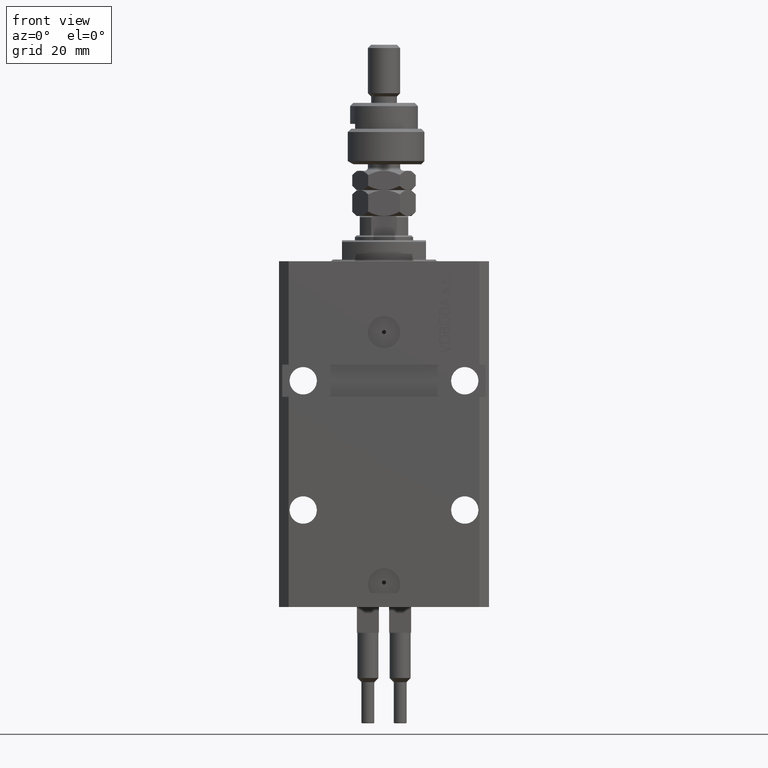
[diagram: clean part render]
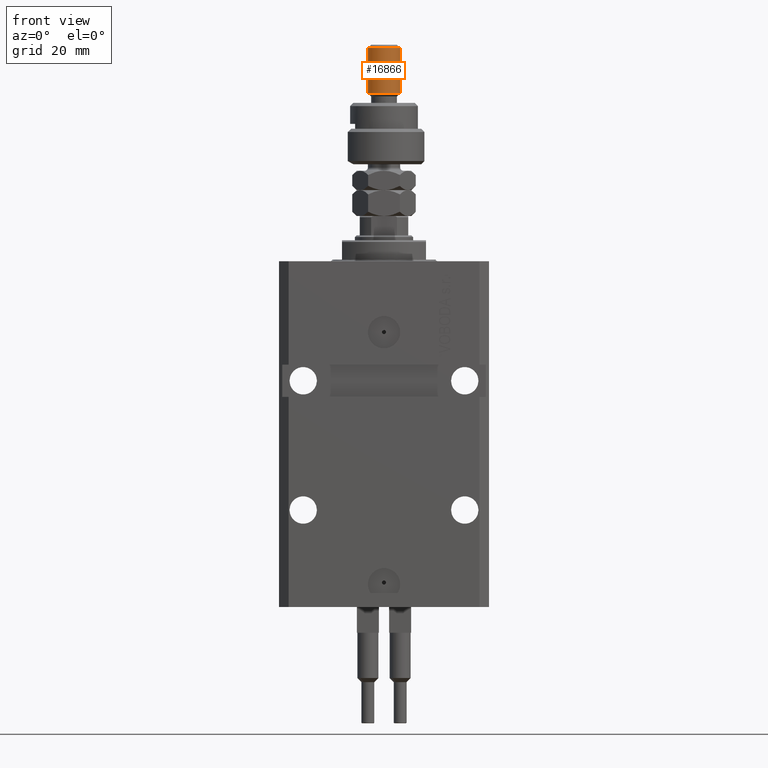
[diagram: same view with one face highlighted and labeled with its STEP entity id]
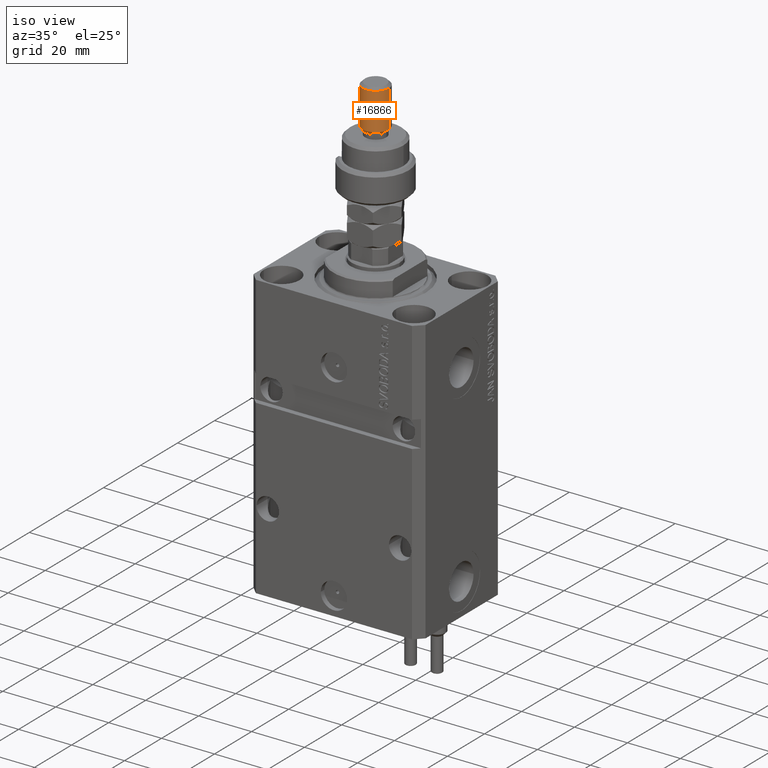
[diagram: same view with one face highlighted and labeled with its STEP entity id]
A machine part, front view. The second image highlights one B-rep face of the part: STEP entity #16866.
A second angle (iso view) of the same face is appended — the face is thin or edge-on in the first view.
In plain terms, the highlighted cylindrical surface (edge-blend (fillet) strip) has radius 5 mm, axis along (-0, -0, -1).
Its self-contained STEP definition (entity closure, byte-faithful):
#4329 = DIRECTION ( 'NONE',  ( 0.000000000000000000, 0.000000000000000000, -1.000000000000000000 ) ) ;
#6002 = EDGE_CURVE ( 'NONE', #43682, #35804, #16160, .T. ) ;
#6141 = DIRECTION ( 'NONE',  ( -0.000000000000000000, -0.000000000000000000, -1.000000000000000000 ) ) ;
#7435 = DIRECTION ( 'NONE',  ( 1.000000000000000000, 0.000000000000000000, 0.000000000000000000 ) ) ;
#7495 = CARTESIAN_POINT ( 'NONE',  ( 5.000000000000000888, 6.123233995736767268E-16, 36.00000000000000711 ) ) ;
#7904 = CARTESIAN_POINT ( 'NONE',  ( 0.000000000000000000, 0.000000000000000000, 21.99999999999999289 ) ) ;
#12590 = DIRECTION ( 'NONE',  ( -0.000000000000000000, -0.000000000000000000, 1.000000000000000000 ) ) ;
#14646 = DIRECTION ( 'NONE',  ( -1.000000000000000000, 0.000000000000000000, 0.000000000000000000 ) ) ;
#16160 = LINE ( 'NONE', #42937, #31492 ) ;
#16261 = CIRCLE ( 'NONE', #22031, 5.000000000000000888 ) ;
#16866 = ADVANCED_FACE ( 'NONE', ( #42469 ), #41964, .T. ) ;
#19914 = AXIS2_PLACEMENT_3D ( 'NONE', #35493, #4329, #7435 ) ;
#20477 = AXIS2_PLACEMENT_3D ( 'NONE', #25586, #49485, #14646 ) ;
#20668 = CARTESIAN_POINT ( 'NONE',  ( 5.000000000000000888, 6.123233995736767268E-16, 21.99999999999999289 ) ) ;
#21421 = VERTEX_POINT ( 'NONE', #30591 ) ;
#22031 = AXIS2_PLACEMENT_3D ( 'NONE', #7904, #12590, #40147 ) ;
#22399 = ORIENTED_EDGE ( 'NONE', *, *, #26620, .T. ) ;
#23206 = CIRCLE ( 'NONE', #19914, 5.000000000000000888 ) ;
#25586 = CARTESIAN_POINT ( 'NONE',  ( 0.000000000000000000, 0.000000000000000000, 37.00000000000000000 ) ) ;
#26620 = EDGE_CURVE ( 'NONE', #43682, #33117, #23206, .T. ) ;
#27498 = ORIENTED_EDGE ( 'NONE', *, *, #6002, .F. ) ;
#30060 = CARTESIAN_POINT ( 'NONE',  ( -5.000000000000000888, 0.000000000000000000, 36.00000000000000711 ) ) ;
#30498 = EDGE_LOOP ( 'NONE', ( #27498, #22399, #51205, #48705 ) ) ;
#30591 = CARTESIAN_POINT ( 'NONE',  ( -5.000000000000000888, 0.000000000000000000, 21.99999999999999289 ) ) ;
#31059 = CARTESIAN_POINT ( 'NONE',  ( -5.000000000000000888, 0.000000000000000000, 37.00000000000000000 ) ) ;
#31492 = VECTOR ( 'NONE', #47854, 1000.000000000000000 ) ;
#33117 = VERTEX_POINT ( 'NONE', #30060 ) ;
#34442 = LINE ( 'NONE', #31059, #47853 ) ;
#35493 = CARTESIAN_POINT ( 'NONE',  ( 0.000000000000000000, 0.000000000000000000, 36.00000000000000711 ) ) ;
#35804 = VERTEX_POINT ( 'NONE', #20668 ) ;
#37036 = EDGE_CURVE ( 'NONE', #21421, #35804, #16261, .T. ) ;
#40147 = DIRECTION ( 'NONE',  ( 1.000000000000000000, 0.000000000000000000, 0.000000000000000000 ) ) ;
#41964 = CYLINDRICAL_SURFACE ( 'NONE', #20477, 5.000000000000000888 ) ;
#42469 = FACE_OUTER_BOUND ( 'NONE', #30498, .T. ) ;
#42805 = EDGE_CURVE ( 'NONE', #33117, #21421, #34442, .T. ) ;
#42937 = CARTESIAN_POINT ( 'NONE',  ( 5.000000000000000888, 6.123233995736767268E-16, 37.00000000000000000 ) ) ;
#43682 = VERTEX_POINT ( 'NONE', #7495 ) ;
#47853 = VECTOR ( 'NONE', #6141, 1000.000000000000000 ) ;
#47854 = DIRECTION ( 'NONE',  ( -0.000000000000000000, -0.000000000000000000, -1.000000000000000000 ) ) ;
#48705 = ORIENTED_EDGE ( 'NONE', *, *, #37036, .T. ) ;
#49485 = DIRECTION ( 'NONE',  ( -0.000000000000000000, -0.000000000000000000, -1.000000000000000000 ) ) ;
#51205 = ORIENTED_EDGE ( 'NONE', *, *, #42805, .T. ) ;